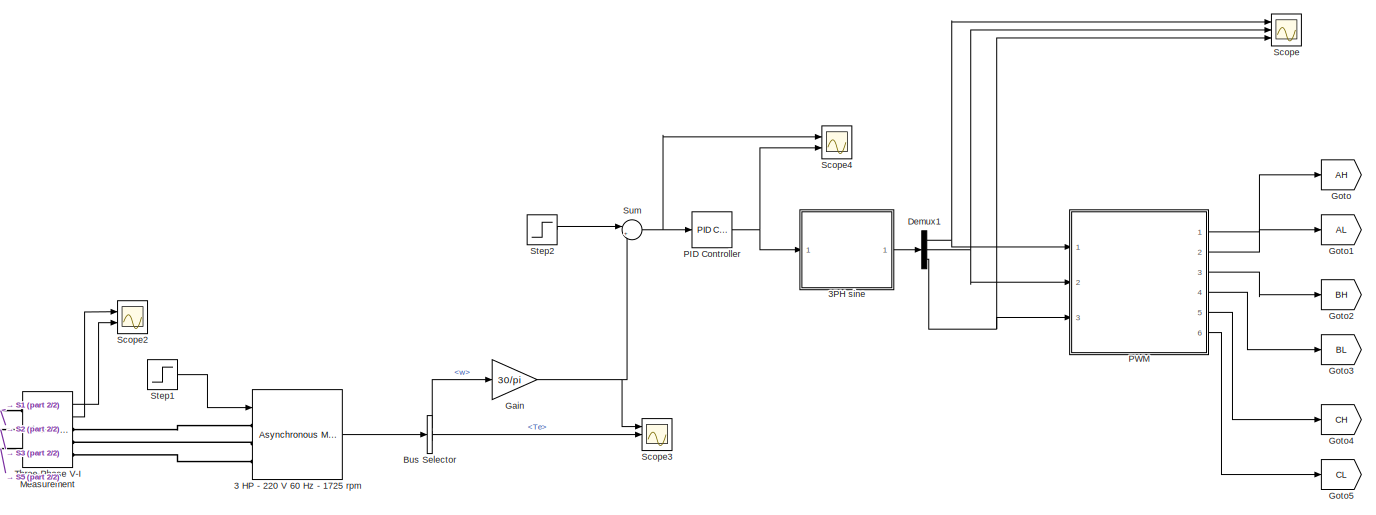
[diagram: root canvas - part 1/2, middle right region]
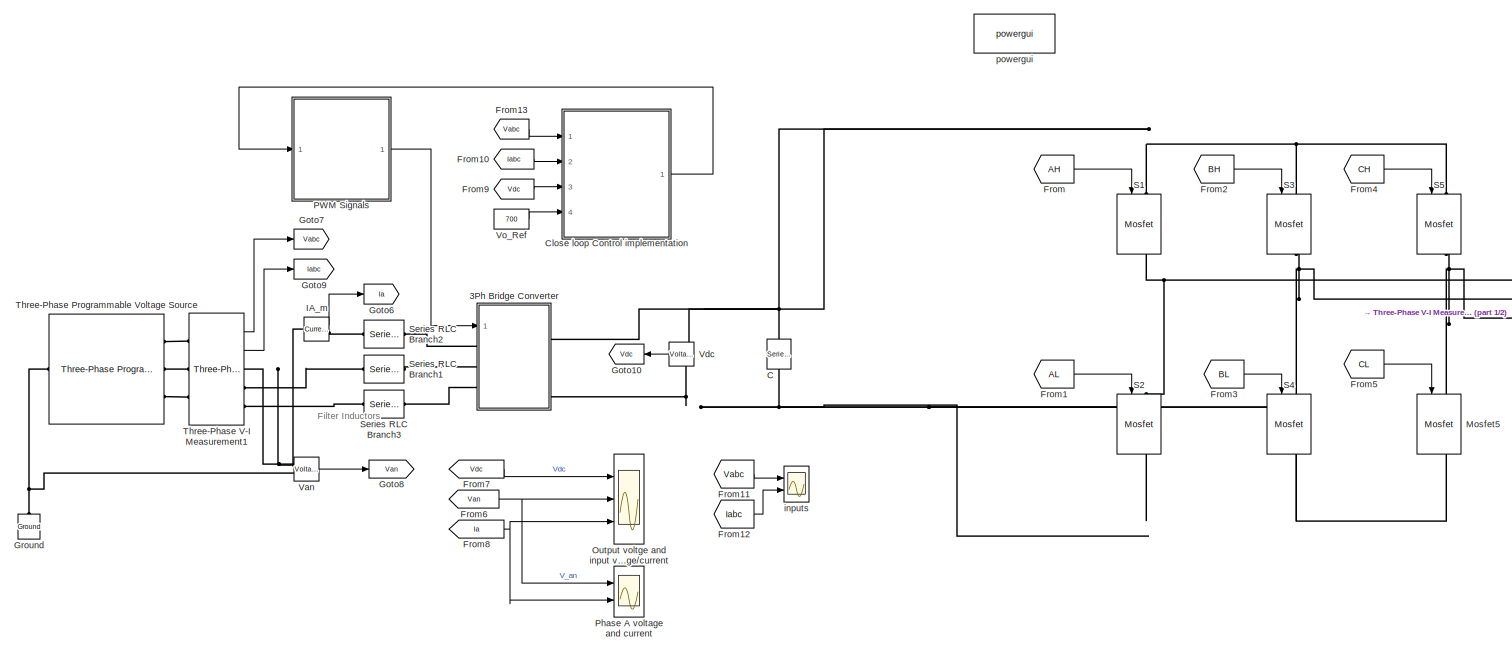
[diagram: root canvas - part 2/2, left side, full height]
MODEL slx_0cd32adfc24b
KIND model
CONFIG AbsTol = auto
CONFIG EnableMultiTasking = off
CONFIG FixedStep = auto
CONFIG MaxStep = auto
CONFIG MinStep = auto
CONFIG RelTol = 1e-3
CONFIG SampleTimeConstraint = Unconstrained
CONFIG Solver = ode23t
CONFIG SolverName = ode23t
CONFIG StartTime = 0.0
CONFIG StopTime = 10.0
BLOCK [Reference] 3 HP - 220 V 60 Hz - 1725 rpm  REF=powerlib/Machines/Asynchronous Machine
SI Units
  AttributesFormatString = \n
  Ports = [1, 1, 0, 0, 0, 3]
  SourceBlock = powerlib/Machines/Asynchronous Machine\nSI Units
  SourceProductBaseCode = PS
  SourceProductName = Simscape Power Systems
  SourceType = Asynchronous Machine
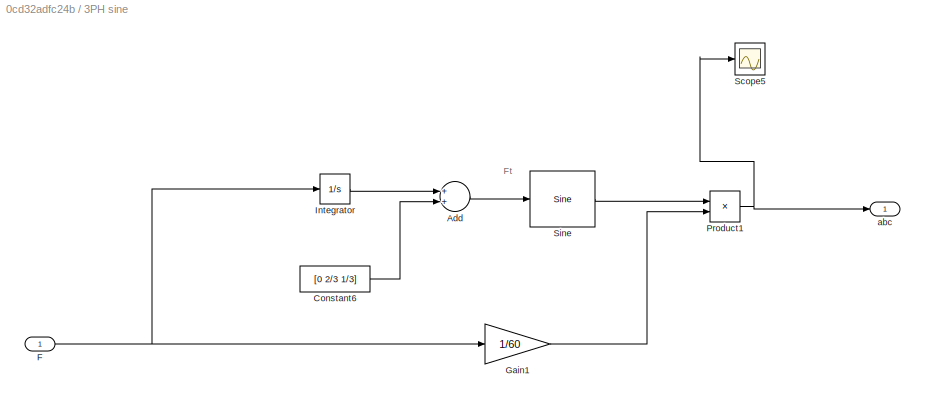
BLOCK [SubSystem] 3PH sine
  Ports = [1, 1]
  RequestExecContextInheritance = off
  Variant = off
BLOCK [Sum] 3PH sine/Add
  InputSameDT = off
  OutDataTypeStr = Inherit: Inherit via internal rule
  Ports = [2, 1]
  SaturateOnIntegerOverflow = off
BLOCK [Constant] 3PH sine/Constant6
  Value = [0 2/3 1/3]
BLOCK [Inport] 3PH sine/F
  IconDisplay = Port number
BLOCK [Gain] 3PH sine/Gain1
  Gain = 1/60
  OutDataTypeStr = Inherit: Inherit via internal rule
  ParamDataTypeStr = Inherit: Inherit via internal rule
  SaturateOnIntegerOverflow = off
BLOCK [Integrator] 3PH sine/Integrator
  Ports = [1, 1]
BLOCK [Product] 3PH sine/Product1
  InputSameDT = off
  OutDataTypeStr = Inherit: Inherit via internal rule
  Ports = [2, 1]
  RndMeth = Floor
  SaturateOnIntegerOverflow = off
BLOCK [Scope] 3PH sine/Scope5
  NumInputPorts = 1
  Ports = [1]
  ScopeSpecificationString = C++SS(StrPVP('Open','off'),StrPVP('TimeRange','auto'),StrPVP('TickLabels','OneTimeTick'),StrPVP('ShowLegends','off'),StrPVP('LimitDataPoints','off'),StrPVP('MaxDataPoints','5000'),StrPVP('SaveToWorkspace','off'),StrPVP('SaveName','ScopeData5'),StrPVP('YMin','-0.83333'),StrPVP('YMax','0.83333'),StrPVP('BlockParamSampleInput','off'),StrPVP('BlockParamSampleTime','-1'),StrPVP('ZoomMode','on'),StrPVP(...<+591ch>
BLOCK [Reference] 3PH sine/Sine  REF=simulink/Lookup
Tables/Sine
  Ports = [1, 1]
  SourceBlock = simulink/Lookup\nTables/Sine
  SourceProductBaseCode = SL
  SourceProductName = Simulink
  SourceType = Sine and Cosine
BLOCK [Outport] 3PH sine/abc
  IconDisplay = Port number
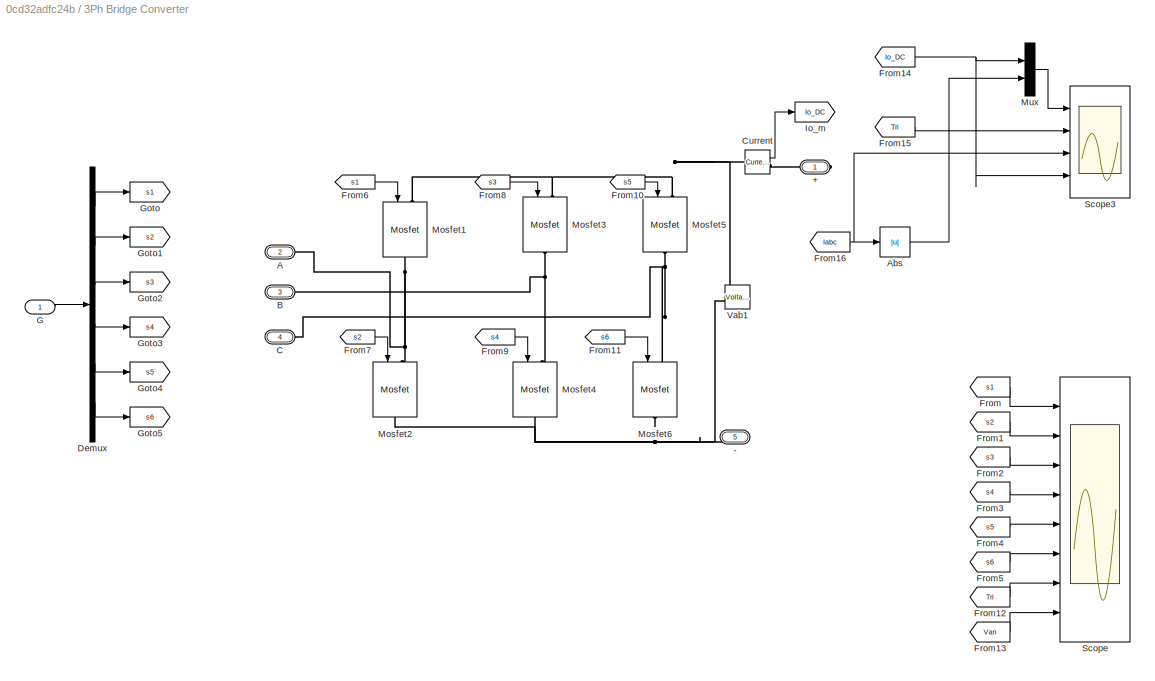
BLOCK [SubSystem] 3Ph Bridge Converter
  Ports = [1, 0, 0, 0, 0, 3, 2]
  RequestExecContextInheritance = off
  Variant = off
BLOCK [PMIOPort] 3Ph Bridge Converter/+
  Port = 1
  Side = Right
BLOCK [PMIOPort] 3Ph Bridge Converter/-
  Port = 5
  Side = Right
BLOCK [PMIOPort] 3Ph Bridge Converter/A
  Port = 2
  Side = Left
BLOCK [Abs] 3Ph Bridge Converter/Abs
  SaturateOnIntegerOverflow = off
BLOCK [PMIOPort] 3Ph Bridge Converter/B
  Port = 3
  Side = Left
BLOCK [PMIOPort] 3Ph Bridge Converter/C
  Port = 4
  Side = Left
BLOCK [Reference] 3Ph Bridge Converter/Current  REF=powerlib/Measurements/Current Measurement
  Ports = [0, 1, 0, 0, 0, 1, 1]
  SourceBlock = powerlib/Measurements/Current Measurement
  SourceProductBaseCode = PS
  SourceProductName = Simscape Power Systems
  SourceType = Current Measurement
BLOCK [Demux] 3Ph Bridge Converter/Demux
  DisplayOption = bar
  Outputs = 6
  Ports = [1, 6]
BLOCK [From] 3Ph Bridge Converter/From
  GotoTag = s1
BLOCK [From] 3Ph Bridge Converter/From1
  GotoTag = s2
BLOCK [From] 3Ph Bridge Converter/From10
  CloseFcn = tagdialog Close
  GotoTag = s5
BLOCK [From] 3Ph Bridge Converter/From11
  CloseFcn = tagdialog Close
  GotoTag = s6
BLOCK [From] 3Ph Bridge Converter/From12
  GotoTag = Tri
  TagVisibility = global
BLOCK [From] 3Ph Bridge Converter/From13
  GotoTag = Van
  TagVisibility = global
BLOCK [From] 3Ph Bridge Converter/From14
  GotoTag = Io_DC
BLOCK [From] 3Ph Bridge Converter/From15
  GotoTag = Tri
  TagVisibility = global
BLOCK [From] 3Ph Bridge Converter/From16
  GotoTag = Iabc
  TagVisibility = global
BLOCK [From] 3Ph Bridge Converter/From2
  GotoTag = s3
BLOCK [From] 3Ph Bridge Converter/From3
  GotoTag = s4
BLOCK [From] 3Ph Bridge Converter/From4
  GotoTag = s5
BLOCK [From] 3Ph Bridge Converter/From5
  GotoTag = s6
BLOCK [From] 3Ph Bridge Converter/From6
  CloseFcn = tagdialog Close
  GotoTag = s1
BLOCK [From] 3Ph Bridge Converter/From7
  CloseFcn = tagdialog Close
  GotoTag = s2
BLOCK [From] 3Ph Bridge Converter/From8
  CloseFcn = tagdialog Close
  GotoTag = s3
BLOCK [From] 3Ph Bridge Converter/From9
  CloseFcn = tagdialog Close
  GotoTag = s4
BLOCK [Inport] 3Ph Bridge Converter/G
  IconDisplay = Port number
BLOCK [Goto] 3Ph Bridge Converter/Goto
  GotoTag = s1
BLOCK [Goto] 3Ph Bridge Converter/Goto1
  GotoTag = s2
BLOCK [Goto] 3Ph Bridge Converter/Goto2
  GotoTag = s3
BLOCK [Goto] 3Ph Bridge Converter/Goto3
  GotoTag = s4
BLOCK [Goto] 3Ph Bridge Converter/Goto4
  GotoTag = s5
BLOCK [Goto] 3Ph Bridge Converter/Goto5
  GotoTag = s6
BLOCK [Goto] 3Ph Bridge Converter/Io_m
  GotoTag = Io_DC
BLOCK [Reference] 3Ph Bridge Converter/Mosfet1  REF=powerlib/Power
Electronics/Mosfet
  Ports = [1, 0, 0, 0, 0, 1, 1]
  SourceBlock = powerlib/Power\nElectronics/Mosfet
  SourceProductBaseCode = PS
  SourceProductName = Simscape Power Systems
  SourceType = Mosfet
BLOCK [Reference] 3Ph Bridge Converter/Mosfet2  REF=powerlib/Power
Electronics/Mosfet
  Ports = [1, 0, 0, 0, 0, 1, 1]
  SourceBlock = powerlib/Power\nElectronics/Mosfet
  SourceProductBaseCode = PS
  SourceProductName = Simscape Power Systems
  SourceType = Mosfet
BLOCK [Reference] 3Ph Bridge Converter/Mosfet3  REF=powerlib/Power
Electronics/Mosfet
  Ports = [1, 0, 0, 0, 0, 1, 1]
  SourceBlock = powerlib/Power\nElectronics/Mosfet
  SourceProductBaseCode = PS
  SourceProductName = Simscape Power Systems
  SourceType = Mosfet
BLOCK [Reference] 3Ph Bridge Converter/Mosfet4  REF=powerlib/Power
Electronics/Mosfet
  Ports = [1, 0, 0, 0, 0, 1, 1]
  SourceBlock = powerlib/Power\nElectronics/Mosfet
  SourceProductBaseCode = PS
  SourceProductName = Simscape Power Systems
  SourceType = Mosfet
BLOCK [Reference] 3Ph Bridge Converter/Mosfet5  REF=powerlib/Power
Electronics/Mosfet
  Ports = [1, 0, 0, 0, 0, 1, 1]
  SourceBlock = powerlib/Power\nElectronics/Mosfet
  SourceProductBaseCode = PS
  SourceProductName = Simscape Power Systems
  SourceType = Mosfet
BLOCK [Reference] 3Ph Bridge Converter/Mosfet6  REF=powerlib/Power
Electronics/Mosfet
  Ports = [1, 0, 0, 0, 0, 1, 1]
  SourceBlock = powerlib/Power\nElectronics/Mosfet
  SourceProductBaseCode = PS
  SourceProductName = Simscape Power Systems
  SourceType = Mosfet
BLOCK [Mux] 3Ph Bridge Converter/Mux
  DisplayOption = bar
  Inputs = 2
  Ports = [2, 1]
BLOCK [Scope] 3Ph Bridge Converter/Scope
  NumInputPorts = 8
  Ports = [8]
  ScopeSpecificationString = Simulink.scopes.TimeScopeBlockCfg('CurrentConfiguration', extmgr.ConfigurationSet(extmgr.Configuration('Core','General UI',true,'FigureColor',[0.156862745098039 0.156862745098039 0.156862745098039]),extmgr.Configuration('Core','Source UI',true),extmgr.Configuration('Sources','WiredSimulink',true,'DataLoggingVariableName','ScopeData6','DataLoggingSaveFormat','StructureWithTime','DataLoggingMaxPoint...<+11340ch>
BLOCK [Scope] 3Ph Bridge Converter/Scope3
  NumInputPorts = 4
  Ports = [4]
  ScopeSpecificationString = Simulink.scopes.TimeScopeBlockCfg('CurrentConfiguration', extmgr.ConfigurationSet(extmgr.Configuration('Core','General UI',true,'FigureColor',[0.156862745098039 0.156862745098039 0.156862745098039]),extmgr.Configuration('Core','Source UI',true),extmgr.Configuration('Sources','WiredSimulink',true,'DataLoggingVariableName','ScopeData10','DataLoggingSaveFormat','StructureWithTime','DataLoggingMaxPoin...<+6565ch>
BLOCK [Reference] 3Ph Bridge Converter/Vab1  REF=powerlib/Measurements/Voltage Measurement
  AttributesFormatString = \n
  Ports = [0, 1, 0, 0, 0, 2]
  SourceBlock = powerlib/Measurements/Voltage Measurement
  SourceProductBaseCode = PS
  SourceProductName = Simscape Power Systems
  SourceType = Voltage Measurement
  Tag = PoWeRsYsTeMmEaSuReMeNt
BLOCK [BusSelector] Bus Selector
  OutputAsBus = off
  OutputSignals = w,Te
  Ports = [1, 2]
BLOCK [Reference] C  REF=powerlib/Elements/Series RLC Branch
  Ports = [0, 0, 0, 0, 0, 1, 1]
  SourceBlock = powerlib/Elements/Series RLC Branch
  SourceProductBaseCode = PS
  SourceProductName = Simscape Power Systems
  SourceType = Series RLC Branch
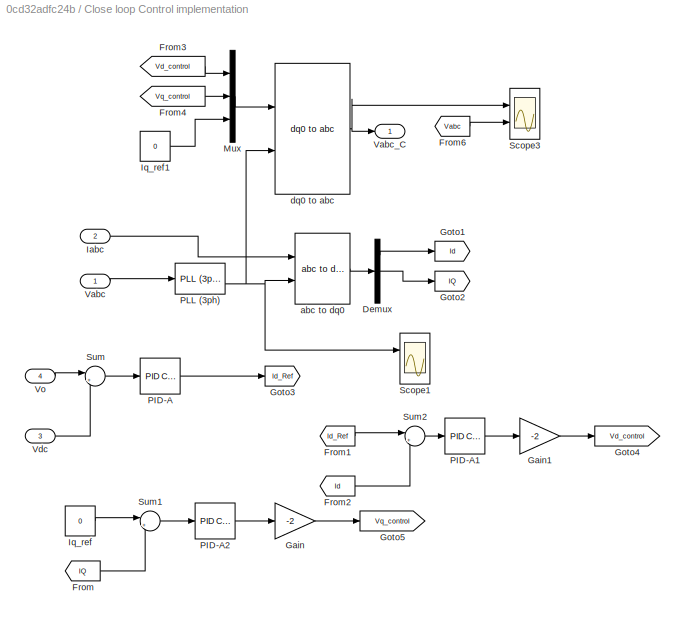
BLOCK [SubSystem] Close loop Control implementation
  Ports = [4, 1]
  RequestExecContextInheritance = off
  Variant = off
BLOCK [Demux] Close loop Control implementation/Demux
  DisplayOption = bar
  Outputs = 3
  Ports = [1, 3]
BLOCK [From] Close loop Control implementation/From
  GotoTag = IQ
  TagVisibility = global
BLOCK [From] Close loop Control implementation/From1
  GotoTag = Id_Ref
  TagVisibility = global
BLOCK [From] Close loop Control implementation/From2
  GotoTag = Id
  TagVisibility = global
BLOCK [From] Close loop Control implementation/From3
  GotoTag = Vd_control
  TagVisibility = global
BLOCK [From] Close loop Control implementation/From4
  GotoTag = Vq_control
  TagVisibility = global
BLOCK [From] Close loop Control implementation/From6
  GotoTag = Vabc
  TagVisibility = global
BLOCK [Gain] Close loop Control implementation/Gain
  Gain = -2
  OutDataTypeStr = Inherit: Inherit via internal rule
  ParamDataTypeStr = Inherit: Inherit via internal rule
  SaturateOnIntegerOverflow = off
BLOCK [Gain] Close loop Control implementation/Gain1
  Gain = -2
  OutDataTypeStr = Inherit: Inherit via internal rule
  ParamDataTypeStr = Inherit: Inherit via internal rule
  SaturateOnIntegerOverflow = off
BLOCK [Goto] Close loop Control implementation/Goto1
  GotoTag = Id
  TagVisibility = global
BLOCK [Goto] Close loop Control implementation/Goto2
  GotoTag = IQ
  TagVisibility = global
BLOCK [Goto] Close loop Control implementation/Goto3
  GotoTag = Id_Ref
  TagVisibility = global
BLOCK [Goto] Close loop Control implementation/Goto4
  GotoTag = Vd_control
  TagVisibility = global
BLOCK [Goto] Close loop Control implementation/Goto5
  GotoTag = Vq_control
  TagVisibility = global
BLOCK [Inport] Close loop Control implementation/Iabc
  IconDisplay = Port number
  Port = 2
BLOCK [Constant] Close loop Control implementation/Iq_ref
  Value = 0
BLOCK [Constant] Close loop Control implementation/Iq_ref1
  Value = 0
BLOCK [Mux] Close loop Control implementation/Mux
  DisplayOption = bar
  Inputs = 3
  Ports = [3, 1]
BLOCK [Reference] Close loop Control implementation/PID-A  REF=simulink/Continuous/PID Controller
  Ports = [1, 1]
  SourceBlock = simulink/Continuous/PID Controller
  SourceProductBaseCode = SL
  SourceProductName = Simulink
  SourceType = PID 1dof
BLOCK [Reference] Close loop Control implementation/PID-A1  REF=simulink/Continuous/PID Controller
  Ports = [1, 1]
  SourceBlock = simulink/Continuous/PID Controller
  SourceProductBaseCode = SL
  SourceProductName = Simulink
  SourceType = PID 1dof
BLOCK [Reference] Close loop Control implementation/PID-A2  REF=simulink/Continuous/PID Controller
  Ports = [1, 1]
  SourceBlock = simulink/Continuous/PID Controller
  SourceProductBaseCode = SL
  SourceProductName = Simulink
  SourceType = PID 1dof
BLOCK [Reference] Close loop Control implementation/PLL (3ph)  REF=powerlib_meascontrol/PLL/PLL
(3ph)
  Ports = [1, 2]
  SourceBlock = powerlib_meascontrol/PLL/PLL\n(3ph)
  SourceProductBaseCode = PS
  SourceProductName = Simscape Power Systems
  SourceType = PLL (3ph)
BLOCK [Scope] Close loop Control implementation/Scope1
  NumInputPorts = 2
  Ports = [2]
  ScopeSpecificationString = Simulink.scopes.TimeScopeBlockCfg('CurrentConfiguration', extmgr.ConfigurationSet(extmgr.Configuration('Core','General UI',true,'FigureColor',[0.156862745098039 0.156862745098039 0.156862745098039]),extmgr.Configuration('Core','Source UI',true),extmgr.Configuration('Sources','WiredSimulink',true,'DataLogging',true,'DataLoggingVariableName','ScopeData5','DataLoggingSaveFormat','StructureWithTime','...<+4056ch>
BLOCK [Scope] Close loop Control implementation/Scope3
  NumInputPorts = 2
  Ports = [2]
  ScopeSpecificationString = Simulink.scopes.TimeScopeBlockCfg('CurrentConfiguration', extmgr.ConfigurationSet(extmgr.Configuration('Core','General UI',true,'FigureColor',[0.156862745098039 0.156862745098039 0.156862745098039]),extmgr.Configuration('Core','Source UI',true),extmgr.Configuration('Sources','WiredSimulink',true,'DataLogging',true,'DataLoggingVariableName','ScopeData4','DataLoggingSaveFormat','StructureWithTime','...<+4060ch>
BLOCK [Sum] Close loop Control implementation/Sum
  IconShape = round
  InputSameDT = off
  Inputs = |+-
  OutDataTypeStr = Inherit: Inherit via internal rule
  Ports = [2, 1]
  SaturateOnIntegerOverflow = off
BLOCK [Sum] Close loop Control implementation/Sum1
  IconShape = round
  InputSameDT = off
  Inputs = |+-
  OutDataTypeStr = Inherit: Inherit via internal rule
  Ports = [2, 1]
  SaturateOnIntegerOverflow = off
BLOCK [Sum] Close loop Control implementation/Sum2
  IconShape = round
  InputSameDT = off
  Inputs = |+-
  OutDataTypeStr = Inherit: Inherit via internal rule
  Ports = [2, 1]
  SaturateOnIntegerOverflow = off
BLOCK [Inport] Close loop Control implementation/Vabc
  IconDisplay = Port number
BLOCK [Outport] Close loop Control implementation/Vabc_C
  IconDisplay = Port number
BLOCK [Inport] Close loop Control implementation/Vdc
  IconDisplay = Port number
  Port = 3
BLOCK [Inport] Close loop Control implementation/Vo
  IconDisplay = Port number
  Port = 4
BLOCK [Reference] Close loop Control implementation/abc to dq0  REF=powerlib_meascontrol/Transformations/abc to dq0
  Ports = [2, 1]
  SourceBlock = powerlib_meascontrol/Transformations/abc to dq0
  SourceProductBaseCode = PS
  SourceProductName = Simscape Power Systems
  SourceType = abc to dq0 Transformation
BLOCK [Reference] Close loop Control implementation/dq0 to abc  REF=powerlib_meascontrol/Transformations/dq0 to abc
  Ports = [2, 1]
  SourceBlock = powerlib_meascontrol/Transformations/dq0 to abc
  SourceProductBaseCode = PS
  SourceProductName = Simscape Power Systems
  SourceType = dq0 to abc Transformation
BLOCK [Demux] Demux1
  DisplayOption = bar
  Outputs = 3
  Ports = [1, 3]
BLOCK [From] From
  GotoTag = AH
BLOCK [From] From1
  GotoTag = AL
BLOCK [From] From10
  GotoTag = Iabc
  TagVisibility = global
BLOCK [From] From11
  GotoTag = Vabc
  TagVisibility = global
BLOCK [From] From12
  GotoTag = Iabc
  TagVisibility = global
BLOCK [From] From13
  GotoTag = Vabc
  TagVisibility = global
BLOCK [From] From2
  GotoTag = BH
BLOCK [From] From3
  GotoTag = BL
BLOCK [From] From4
  GotoTag = CH
BLOCK [From] From5
  GotoTag = CL
BLOCK [From] From6
  GotoTag = Van
  TagVisibility = global
BLOCK [From] From7
  GotoTag = Vdc
  TagVisibility = global
BLOCK [From] From8
  GotoTag = Ia
  TagVisibility = global
BLOCK [From] From9
  GotoTag = Vdc
  TagVisibility = global
BLOCK [Gain] Gain
  Gain = 30/pi
  OutDataTypeStr = Inherit: Inherit via internal rule
  ParamDataTypeStr = Inherit: Inherit via internal rule
  SaturateOnIntegerOverflow = off
BLOCK [Goto] Goto
  GotoTag = AH
BLOCK [Goto] Goto1
  GotoTag = AL
BLOCK [Goto] Goto10
  GotoTag = Vdc
  TagVisibility = global
BLOCK [Goto] Goto2
  GotoTag = BH
BLOCK [Goto] Goto3
  GotoTag = BL
BLOCK [Goto] Goto4
  GotoTag = CH
BLOCK [Goto] Goto5
  GotoTag = CL
BLOCK [Goto] Goto6
  GotoTag = Ia
  TagVisibility = global
BLOCK [Goto] Goto7
  GotoTag = Vabc
  TagVisibility = global
BLOCK [Goto] Goto8
  GotoTag = Van
  TagVisibility = global
BLOCK [Goto] Goto9
  GotoTag = Iabc
  TagVisibility = global
BLOCK [Reference] Ground  REF=powerlib/Elements/Ground
  Ports = [0, 0, 0, 0, 0, 1]
  SourceBlock = powerlib/Elements/Ground
  SourceProductBaseCode = PS
  SourceProductName = Simscape Power Systems
  SourceType = Ground
BLOCK [Reference] IA_m  REF=powerlib/Measurements/Current Measurement
  Ports = [0, 1, 0, 0, 0, 1, 1]
  SourceBlock = powerlib/Measurements/Current Measurement
  SourceProductBaseCode = PS
  SourceProductName = Simscape Power Systems
  SourceType = Current Measurement
BLOCK [Reference] Mosfet5  REF=powerlib/Power
Electronics/Mosfet
  Ports = [1, 1, 0, 0, 0, 1, 1]
  SourceBlock = powerlib/Power\nElectronics/Mosfet
  SourceProductBaseCode = PS
  SourceProductName = Simscape Power Systems
  SourceType = Mosfet
BLOCK [Scope] Output voltge and input voltage//current
  NumInputPorts = 3
  Ports = [3]
  ScopeSpecificationString = Simulink.scopes.TimeScopeBlockCfg('CurrentConfiguration', extmgr.ConfigurationSet(extmgr.Configuration('Core','General UI',true),extmgr.Configuration('Core','Source UI',true),extmgr.Configuration('Sources','WiredSimulink',true,'DataLoggingDecimation','1','DataLoggingDecimateData',true,'DataLoggingSaveFormat','StructureWithTime','DataLoggingMaxPoints','1000000','DataLoggingVariableName','ScopeData1...<+5267ch>
BLOCK [Reference] PID Controller  REF=simulink/Continuous/PID Controller
  Ports = [1, 1]
  SourceBlock = simulink/Continuous/PID Controller
  SourceProductBaseCode = SL
  SourceProductName = Simulink
  SourceType = PID 1dof
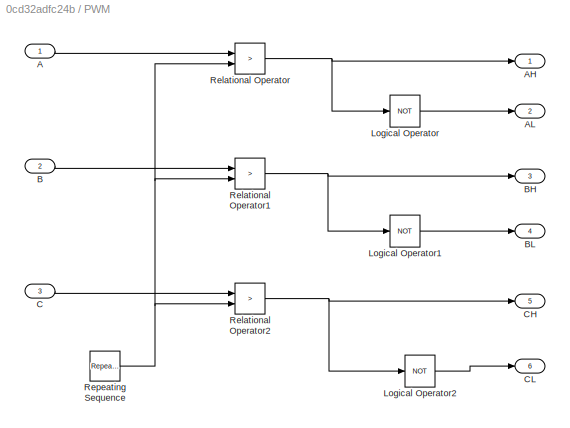
BLOCK [SubSystem] PWM
  Ports = [3, 6]
  RequestExecContextInheritance = off
  Variant = off
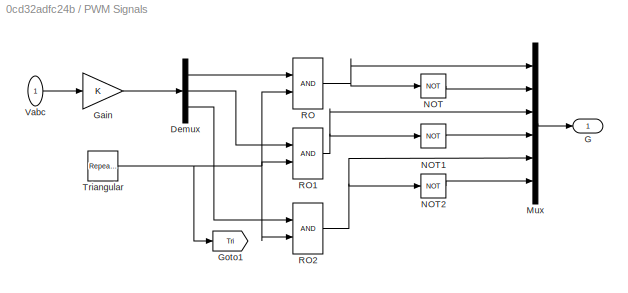
BLOCK [SubSystem] PWM Signals
  Ports = [1, 1]
  RequestExecContextInheritance = off
  Variant = off
BLOCK [Demux] PWM Signals/Demux
  DisplayOption = bar
  Outputs = 3
  Ports = [1, 3]
BLOCK [Outport] PWM Signals/G
  IconDisplay = Port number
BLOCK [Gain] PWM Signals/Gain
  OutDataTypeStr = Inherit: Inherit via internal rule
  ParamDataTypeStr = Inherit: Inherit via internal rule
  SaturateOnIntegerOverflow = off
BLOCK [Goto] PWM Signals/Goto1
  GotoTag = Tri
  TagVisibility = global
BLOCK [Mux] PWM Signals/Mux
  DisplayOption = bar
  Inputs = 6
  Ports = [6, 1]
BLOCK [Logic] PWM Signals/NOT
  AllPortsSameDT = off
  IconShape = distinctive
  Operator = NOT
  OutDataTypeStr = boolean
  Ports = [1, 1]
BLOCK [Logic] PWM Signals/NOT1
  AllPortsSameDT = off
  IconShape = distinctive
  Operator = NOT
  OutDataTypeStr = boolean
  Ports = [1, 1]
BLOCK [Logic] PWM Signals/NOT2
  AllPortsSameDT = off
  IconShape = distinctive
  Operator = NOT
  OutDataTypeStr = boolean
  Ports = [1, 1]
BLOCK [RelationalOperator] PWM Signals/RO
  InputSameDT = off
  OutDataTypeStr = boolean
  Ports = [2, 1]
BLOCK [RelationalOperator] PWM Signals/RO1
  InputSameDT = off
  OutDataTypeStr = boolean
  Ports = [2, 1]
BLOCK [RelationalOperator] PWM Signals/RO2
  InputSameDT = off
  OutDataTypeStr = boolean
  Ports = [2, 1]
BLOCK [Reference] PWM Signals/Triangular  REF=simulink/Sources/Repeating
Sequence
  Ports = [0, 1]
  SourceBlock = simulink/Sources/Repeating\nSequence
  SourceProductBaseCode = SL
  SourceProductName = Simulink
  SourceType = Repeating table
BLOCK [Inport] PWM Signals/Vabc
  IconDisplay = Port number
BLOCK [Inport] PWM/A
  IconDisplay = Port number
BLOCK [Outport] PWM/AH
  IconDisplay = Port number
BLOCK [Outport] PWM/AL
  IconDisplay = Port number
  Port = 2
BLOCK [Inport] PWM/B
  IconDisplay = Port number
  Port = 2
BLOCK [Outport] PWM/BH
  IconDisplay = Port number
  Port = 3
BLOCK [Outport] PWM/BL
  IconDisplay = Port number
  Port = 4
BLOCK [Inport] PWM/C
  IconDisplay = Port number
  Port = 3
BLOCK [Outport] PWM/CH
  IconDisplay = Port number
  Port = 5
BLOCK [Outport] PWM/CL
  IconDisplay = Port number
  Port = 6
BLOCK [Logic] PWM/Logical Operator
  AllPortsSameDT = off
  IconShape = distinctive
  Operator = NOT
  OutDataTypeStr = boolean
  Ports = [1, 1]
BLOCK [Logic] PWM/Logical Operator1
  AllPortsSameDT = off
  IconShape = distinctive
  Operator = NOT
  OutDataTypeStr = boolean
  Ports = [1, 1]
BLOCK [Logic] PWM/Logical Operator2
  AllPortsSameDT = off
  IconShape = distinctive
  Operator = NOT
  OutDataTypeStr = boolean
  Ports = [1, 1]
BLOCK [RelationalOperator] PWM/Relational Operator
  InputSameDT = off
  Operator = >
  OutDataTypeStr = boolean
  Ports = [2, 1]
BLOCK [RelationalOperator] PWM/Relational Operator1
  InputSameDT = off
  Operator = >
  OutDataTypeStr = boolean
  Ports = [2, 1]
BLOCK [RelationalOperator] PWM/Relational Operator2
  InputSameDT = off
  Operator = >
  OutDataTypeStr = boolean
  Ports = [2, 1]
BLOCK [Reference] PWM/Repeating Sequence  REF=simulink/Sources/Repeating
Sequence
  Ports = [0, 1]
  SourceBlock = simulink/Sources/Repeating\nSequence
  SourceProductBaseCode = SL
  SourceProductName = Simulink
  SourceType = Repeating table
BLOCK [Scope] Phase A voltage and current
  NumInputPorts = 2
  Ports = [2]
  ScopeSpecificationString = Simulink.scopes.TimeScopeBlockCfg('CurrentConfiguration', extmgr.ConfigurationSet(extmgr.Configuration('Core','General UI',true),extmgr.Configuration('Core','Source UI',true),extmgr.Configuration('Sources','WiredSimulink',true,'DataLoggingVariableName','ScopeData3','DataLoggingDecimation','1','DataLoggingDecimateData',true,'DataLoggingSaveFormat','StructureWithTime','DataLoggingMaxPoints','1000000...<+2110ch>
BLOCK [Reference] S1  REF=powerlib/Power
Electronics/Mosfet
  Ports = [1, 1, 0, 0, 0, 1, 1]
  SourceBlock = powerlib/Power\nElectronics/Mosfet
  SourceProductBaseCode = PS
  SourceProductName = Simscape Power Systems
  SourceType = Mosfet
BLOCK [Reference] S2  REF=powerlib/Power
Electronics/Mosfet
  Ports = [1, 1, 0, 0, 0, 1, 1]
  SourceBlock = powerlib/Power\nElectronics/Mosfet
  SourceProductBaseCode = PS
  SourceProductName = Simscape Power Systems
  SourceType = Mosfet
BLOCK [Reference] S3  REF=powerlib/Power
Electronics/Mosfet
  Ports = [1, 1, 0, 0, 0, 1, 1]
  SourceBlock = powerlib/Power\nElectronics/Mosfet
  SourceProductBaseCode = PS
  SourceProductName = Simscape Power Systems
  SourceType = Mosfet
BLOCK [Reference] S4  REF=powerlib/Power
Electronics/Mosfet
  Ports = [1, 1, 0, 0, 0, 1, 1]
  SourceBlock = powerlib/Power\nElectronics/Mosfet
  SourceProductBaseCode = PS
  SourceProductName = Simscape Power Systems
  SourceType = Mosfet
BLOCK [Reference] S5  REF=powerlib/Power
Electronics/Mosfet
  Ports = [1, 1, 0, 0, 0, 1, 1]
  SourceBlock = powerlib/Power\nElectronics/Mosfet
  SourceProductBaseCode = PS
  SourceProductName = Simscape Power Systems
  SourceType = Mosfet
BLOCK [Scope] Scope
  NumInputPorts = 3
  Ports = [3]
  ScopeSpecificationString = Simulink.scopes.TimeScopeBlockCfg('CurrentConfiguration', extmgr.ConfigurationSet(extmgr.Configuration('Core','General UI',true,'FigureColor',[0.156862745098039 0.156862745098039 0.156862745098039]),extmgr.Configuration('Core','Source UI',true),extmgr.Configuration('Sources','WiredSimulink',true,'DataLoggingVariableName','ScopeData4','DataLoggingSaveFormat','StructureWithTime','DataLoggingDecimati...<+5177ch>
BLOCK [Scope] Scope2
  NumInputPorts = 2
  Ports = [2]
  ScopeSpecificationString = Simulink.scopes.TimeScopeBlockCfg('CurrentConfiguration', extmgr.ConfigurationSet(extmgr.Configuration('Core','General UI',true,'FigureColor',[0.156862745098039 0.156862745098039 0.156862745098039]),extmgr.Configuration('Core','Source UI',true),extmgr.Configuration('Sources','WiredSimulink',true,'DataLoggingVariableName','ScopeData5','DataLoggingSaveFormat','StructureWithTime','DataLoggingDecimati...<+4711ch>
BLOCK [Scope] Scope3
  NumInputPorts = 3
  Ports = [3]
  ScopeSpecificationString = Simulink.scopes.TimeScopeBlockCfg('CurrentConfiguration', extmgr.ConfigurationSet(extmgr.Configuration('Core','General UI',true,'FigureColor',[0.156862745098039 0.156862745098039 0.156862745098039]),extmgr.Configuration('Core','Source UI',true),extmgr.Configuration('Sources','WiredSimulink',true,'DataLoggingVariableName','ScopeData6','DataLoggingSaveFormat','StructureWithTime','DataLoggingDecimati...<+6248ch>
BLOCK [Scope] Scope4
  NumInputPorts = 2
  Ports = [2]
  ScopeSpecificationString = Simulink.scopes.TimeScopeBlockCfg('CurrentConfiguration', extmgr.ConfigurationSet(extmgr.Configuration('Core','General UI',true,'FigureColor',[0.156862745098039 0.156862745098039 0.156862745098039]),extmgr.Configuration('Core','Source UI',true),extmgr.Configuration('Sources','WiredSimulink',true,'DataLoggingVariableName','ScopeData7','DataLoggingSaveFormat','StructureWithTime','DataLoggingDecimati...<+4565ch>
BLOCK [Reference] Series RLC Branch1  REF=powerlib/Elements/Series RLC Branch
  Ports = [0, 0, 0, 0, 0, 1, 1]
  SourceBlock = powerlib/Elements/Series RLC Branch
  SourceProductBaseCode = PS
  SourceProductName = Simscape Power Systems
  SourceType = Series RLC Branch
BLOCK [Reference] Series RLC Branch2  REF=powerlib/Elements/Series RLC Branch
  Ports = [0, 0, 0, 0, 0, 1, 1]
  SourceBlock = powerlib/Elements/Series RLC Branch
  SourceProductBaseCode = PS
  SourceProductName = Simscape Power Systems
  SourceType = Series RLC Branch
BLOCK [Reference] Series RLC Branch3  REF=powerlib/Elements/Series RLC Branch
  Ports = [0, 0, 0, 0, 0, 1, 1]
  SourceBlock = powerlib/Elements/Series RLC Branch
  SourceProductBaseCode = PS
  SourceProductName = Simscape Power Systems
  SourceType = Series RLC Branch
BLOCK [Step] Step1
  After = 5
  Before = 5
  SampleTime = 0
  Time = 5
BLOCK [Step] Step2
  After = 800
  Before = 1500
  SampleTime = 0
  Time = 3
BLOCK [Sum] Sum
  IconShape = round
  InputSameDT = off
  Inputs = |+-
  OutDataTypeStr = Inherit: Inherit via internal rule
  Ports = [2, 1]
  SaturateOnIntegerOverflow = off
BLOCK [Reference] Three-Phase Programmable Voltage Source  REF=powerlib/Electrical
Sources/Three-Phase
Programmable
Voltage Source
  Ports = [0, 0, 0, 0, 0, 1, 3]
  SourceBlock = powerlib/Electrical\nSources/Three-Phase\nProgrammable\nVoltage Source
  SourceProductBaseCode = PS
  SourceProductName = Simscape Power Systems
  SourceType = Three-Phase Programmable Voltage Source
BLOCK [Reference] Three-Phase V-I Measurement  REF=powerlib/Measurements/Three-Phase
V-I Measurement
  Ports = [0, 2, 0, 0, 0, 3, 3]
  SourceBlock = powerlib/Measurements/Three-Phase\nV-I Measurement
  SourceProductBaseCode = PS
  SourceProductName = Simscape Power Systems
  SourceType = Three-Phase VI Measurement
BLOCK [Reference] Three-Phase V-I Measurement1  REF=powerlib/Measurements/Three-Phase
V-I Measurement
  Ports = [0, 2, 0, 0, 0, 3, 3]
  SourceBlock = powerlib/Measurements/Three-Phase\nV-I Measurement
  SourceProductBaseCode = PS
  SourceProductName = Simscape Power Systems
  SourceType = Three-Phase VI Measurement
BLOCK [Reference] Van  REF=powerlib/Measurements/Voltage Measurement
  AttributesFormatString = \n
  Ports = [0, 1, 0, 0, 0, 2]
  SourceBlock = powerlib/Measurements/Voltage Measurement
  SourceProductBaseCode = PS
  SourceProductName = Simscape Power Systems
  SourceType = Voltage Measurement
  Tag = PoWeRsYsTeMmEaSuReMeNt
BLOCK [Reference] Vdc   REF=powerlib/Measurements/Voltage Measurement
  AttributesFormatString = \n
  Ports = [0, 1, 0, 0, 0, 2]
  SourceBlock = powerlib/Measurements/Voltage Measurement
  SourceProductBaseCode = PS
  SourceProductName = Simscape Power Systems
  SourceType = Voltage Measurement
  Tag = PoWeRsYsTeMmEaSuReMeNt
BLOCK [Constant] Vo_Ref
  Value = 700
BLOCK [Scope] inputs
  NumInputPorts = 2
  Ports = [2]
  ScopeSpecificationString = Simulink.scopes.TimeScopeBlockCfg('CurrentConfiguration', extmgr.ConfigurationSet(extmgr.Configuration('Core','General UI',true),extmgr.Configuration('Core','Source UI',true),extmgr.Configuration('Sources','WiredSimulink',true,'DataLoggingVariableName','ScopeData2','DataLoggingDecimation','1','DataLoggingDecimateData',true,'DataLoggingSaveFormat','StructureWithTime','DataLoggingMaxPoints','1000000...<+4178ch>
BLOCK [Reference] powergui  REF=powerlib/powergui
  Ports = []
  Priority = 1
  SourceBlock = powerlib/powergui
  SourceProductBaseCode = PS
  SourceProductName = Simscape Power Systems
  SourceType = PSB option menu block
ANNOTATION (root): Filter Inductors
ANNOTATION 3PH sine: Ft
LINE 3 HP - 220 V 60 Hz - 1725 rpm:1 -> Bus Selector:1
LINE 3PH sine/Add:1 -> 3PH sine/Sine:1
LINE 3PH sine/Constant6:1 -> 3PH sine/Add:2
NET 3PH sine/F:1 -> 3PH sine/Gain1:1, 3PH sine/Integrator:1
LINE 3PH sine/Gain1:1 -> 3PH sine/Product1:2
LINE 3PH sine/Integrator:1 -> 3PH sine/Add:1
NET 3PH sine/Product1:1 -> 3PH sine/Scope5:1, 3PH sine/abc:1
LINE 3PH sine/Sine:1 -> 3PH sine/Product1:1
LINE 3PH sine:1 -> Demux1:1
LINE 3Ph Bridge Converter/Abs:1 -> 3Ph Bridge Converter/Mux:2
LINE 3Ph Bridge Converter/Current:1 -> 3Ph Bridge Converter/Io_m:1
LINE 3Ph Bridge Converter/Demux:1 -> 3Ph Bridge Converter/Goto:1
LINE 3Ph Bridge Converter/Demux:2 -> 3Ph Bridge Converter/Goto1:1
LINE 3Ph Bridge Converter/Demux:3 -> 3Ph Bridge Converter/Goto2:1
LINE 3Ph Bridge Converter/Demux:4 -> 3Ph Bridge Converter/Goto3:1
LINE 3Ph Bridge Converter/Demux:5 -> 3Ph Bridge Converter/Goto4:1
LINE 3Ph Bridge Converter/Demux:6 -> 3Ph Bridge Converter/Goto5:1
LINE 3Ph Bridge Converter/From10:1 -> 3Ph Bridge Converter/Mosfet5:1
LINE 3Ph Bridge Converter/From11:1 -> 3Ph Bridge Converter/Mosfet6:1
LINE 3Ph Bridge Converter/From12:1 -> 3Ph Bridge Converter/Scope:7
LINE 3Ph Bridge Converter/From13:1 -> 3Ph Bridge Converter/Scope:8
NET 3Ph Bridge Converter/From14:1 -> 3Ph Bridge Converter/Mux:1, 3Ph Bridge Converter/Scope3:4
LINE 3Ph Bridge Converter/From15:1 -> 3Ph Bridge Converter/Scope3:2
NET 3Ph Bridge Converter/From16:1 -> 3Ph Bridge Converter/Abs:1, 3Ph Bridge Converter/Scope3:3
LINE 3Ph Bridge Converter/From1:1 -> 3Ph Bridge Converter/Scope:2
LINE 3Ph Bridge Converter/From2:1 -> 3Ph Bridge Converter/Scope:3
LINE 3Ph Bridge Converter/From3:1 -> 3Ph Bridge Converter/Scope:4
LINE 3Ph Bridge Converter/From4:1 -> 3Ph Bridge Converter/Scope:5
LINE 3Ph Bridge Converter/From5:1 -> 3Ph Bridge Converter/Scope:6
LINE 3Ph Bridge Converter/From6:1 -> 3Ph Bridge Converter/Mosfet1:1
LINE 3Ph Bridge Converter/From7:1 -> 3Ph Bridge Converter/Mosfet2:1
LINE 3Ph Bridge Converter/From8:1 -> 3Ph Bridge Converter/Mosfet3:1
LINE 3Ph Bridge Converter/From9:1 -> 3Ph Bridge Converter/Mosfet4:1
LINE 3Ph Bridge Converter/From:1 -> 3Ph Bridge Converter/Scope:1
LINE 3Ph Bridge Converter/G:1 -> 3Ph Bridge Converter/Demux:1
LINE 3Ph Bridge Converter/Mux:1 -> 3Ph Bridge Converter/Scope3:1
LINE Bus Selector:1 -> Gain:1
LINE Bus Selector:2 -> Scope3:2
LINE Close loop Control implementation/Demux:1 -> Close loop Control implementation/Goto1:1
LINE Close loop Control implementation/Demux:2 -> Close loop Control implementation/Goto2:1
LINE Close loop Control implementation/From1:1 -> Close loop Control implementation/Sum2:1
LINE Close loop Control implementation/From2:1 -> Close loop Control implementation/Sum2:2
LINE Close loop Control implementation/From3:1 -> Close loop Control implementation/Mux:1
LINE Close loop Control implementation/From4:1 -> Close loop Control implementation/Mux:2
LINE Close loop Control implementation/From6:1 -> Close loop Control implementation/Scope3:2
LINE Close loop Control implementation/From:1 -> Close loop Control implementation/Sum1:2
LINE Close loop Control implementation/Gain1:1 -> Close loop Control implementation/Goto4:1
LINE Close loop Control implementation/Gain:1 -> Close loop Control implementation/Goto5:1
LINE Close loop Control implementation/Iabc:1 -> Close loop Control implementation/abc to dq0:1
LINE Close loop Control implementation/Iq_ref1:1 -> Close loop Control implementation/Mux:3
LINE Close loop Control implementation/Iq_ref:1 -> Close loop Control implementation/Sum1:1
LINE Close loop Control implementation/Mux:1 -> Close loop Control implementation/dq0 to abc:1
LINE Close loop Control implementation/PID-A1:1 -> Close loop Control implementation/Gain1:1
LINE Close loop Control implementation/PID-A2:1 -> Close loop Control implementation/Gain:1
LINE Close loop Control implementation/PID-A:1 -> Close loop Control implementation/Goto3:1
NET Close loop Control implementation/PLL (3ph):2 -> Close loop Control implementation/Scope1:1, Close loop Control implementation/abc to dq0:2, Close loop Control implementation/dq0 to abc:2
LINE Close loop Control implementation/Sum1:1 -> Close loop Control implementation/PID-A2:1
LINE Close loop Control implementation/Sum2:1 -> Close loop Control implementation/PID-A1:1
LINE Close loop Control implementation/Sum:1 -> Close loop Control implementation/PID-A:1
LINE Close loop Control implementation/Vabc:1 -> Close loop Control implementation/PLL (3ph):1
LINE Close loop Control implementation/Vdc:1 -> Close loop Control implementation/Sum:2
LINE Close loop Control implementation/Vo:1 -> Close loop Control implementation/Sum:1
LINE Close loop Control implementation/abc to dq0:1 -> Close loop Control implementation/Demux:1
NET Close loop Control implementation/dq0 to abc:1 -> Close loop Control implementation/Scope3:1, Close loop Control implementation/Vabc_C:1
LINE Close loop Control implementation:1 -> PWM Signals:1
NET Demux1:1 -> PWM:1, Scope:1
NET Demux1:2 -> PWM:2, Scope:2
NET Demux1:3 -> PWM:3, Scope:3
LINE From10:1 -> Close loop Control implementation:2
LINE From11:1 -> inputs:1
LINE From12:1 -> inputs:2
LINE From13:1 -> Close loop Control implementation:1
LINE From1:1 -> S2:1
LINE From2:1 -> S3:1
LINE From3:1 -> S4:1
LINE From4:1 -> S5:1
LINE From5:1 -> Mosfet5:1
NET From6:1 -> Output voltge and input voltage//current:2, Phase A voltage and current:1
LINE From7:1 -> Output voltge and input voltage//current:1
NET From8:1 -> Output voltge and input voltage//current:3, Phase A voltage and current:2
LINE From9:1 -> Close loop Control implementation:3
LINE From:1 -> S1:1
NET Gain:1 -> Scope3:1, Sum:2
LINE IA_m:1 -> Goto6:1
NET PID Controller:1 -> 3PH sine:1, Scope4:2
LINE PWM Signals/Demux:1 -> PWM Signals/RO:1
LINE PWM Signals/Demux:2 -> PWM Signals/RO1:1
LINE PWM Signals/Demux:3 -> PWM Signals/RO2:1
LINE PWM Signals/Gain:1 -> PWM Signals/Demux:1
LINE PWM Signals/Mux:1 -> PWM Signals/G:1
LINE PWM Signals/NOT1:1 -> PWM Signals/Mux:4
LINE PWM Signals/NOT2:1 -> PWM Signals/Mux:6
LINE PWM Signals/NOT:1 -> PWM Signals/Mux:2
NET PWM Signals/RO1:1 -> PWM Signals/Mux:3, PWM Signals/NOT1:1
NET PWM Signals/RO2:1 -> PWM Signals/Mux:5, PWM Signals/NOT2:1
NET PWM Signals/RO:1 -> PWM Signals/Mux:1, PWM Signals/NOT:1
NET PWM Signals/Triangular:1 -> PWM Signals/Goto1:1, PWM Signals/RO1:2, PWM Signals/RO2:2, PWM Signals/RO:2
LINE PWM Signals/Vabc:1 -> PWM Signals/Gain:1
LINE PWM Signals:1 -> 3Ph Bridge Converter:1
LINE PWM/A:1 -> PWM/Relational Operator:1
LINE PWM/B:1 -> PWM/Relational Operator1:1
LINE PWM/C:1 -> PWM/Relational Operator2:1
LINE PWM/Logical Operator1:1 -> PWM/BL:1
LINE PWM/Logical Operator2:1 -> PWM/CL:1
LINE PWM/Logical Operator:1 -> PWM/AL:1
NET PWM/Relational Operator1:1 -> PWM/BH:1, PWM/Logical Operator1:1
NET PWM/Relational Operator2:1 -> PWM/CH:1, PWM/Logical Operator2:1
NET PWM/Relational Operator:1 -> PWM/AH:1, PWM/Logical Operator:1
NET PWM/Repeating Sequence:1 -> PWM/Relational Operator1:2, PWM/Relational Operator2:2, PWM/Relational Operator:2
LINE PWM:1 -> Goto:1
LINE PWM:2 -> Goto1:1
LINE PWM:3 -> Goto2:1
LINE PWM:4 -> Goto3:1
LINE PWM:5 -> Goto4:1
LINE PWM:6 -> Goto5:1
LINE Step1:1 -> 3 HP - 220 V 60 Hz - 1725 rpm:1
LINE Step2:1 -> Sum:1
NET Sum:1 -> PID Controller:1, Scope4:1
LINE Three-Phase V-I Measurement1:1 -> Goto7:1
LINE Three-Phase V-I Measurement1:2 -> Goto9:1
LINE Three-Phase V-I Measurement:1 -> Scope2:2
LINE Three-Phase V-I Measurement:2 -> Scope2:1
LINE Van:1 -> Goto8:1
LINE Vdc :1 -> Goto10:1
LINE Vo_Ref:1 -> Close loop Control implementation:4
PLINE 3 HP - 220 V 60 Hz - 1725 rpm:LConn1 -- Three-Phase V-I Measurement:RConn1
PLINE 3 HP - 220 V 60 Hz - 1725 rpm:LConn2 -- Three-Phase V-I Measurement:RConn2
PLINE 3 HP - 220 V 60 Hz - 1725 rpm:LConn3 -- Three-Phase V-I Measurement:RConn3
PLINE 3Ph Bridge Converter/+:RConn1 -- 3Ph Bridge Converter/Current:RConn1
PNET net1: 3Ph Bridge Converter/-:RConn1 -- 3Ph Bridge Converter/Mosfet2:RConn1 -- 3Ph Bridge Converter/Mosfet4:RConn1 -- 3Ph Bridge Converter/Mosfet6:RConn1 -- 3Ph Bridge Converter/Vab1:LConn2
PNET net2: 3Ph Bridge Converter/A:RConn1 -- 3Ph Bridge Converter/Mosfet1:RConn1 -- 3Ph Bridge Converter/Mosfet2:LConn1
PNET net3: 3Ph Bridge Converter/B:RConn1 -- 3Ph Bridge Converter/Mosfet3:RConn1 -- 3Ph Bridge Converter/Mosfet4:LConn1
PNET net4: 3Ph Bridge Converter/C:RConn1 -- 3Ph Bridge Converter/Mosfet5:RConn1 -- 3Ph Bridge Converter/Mosfet6:LConn1
PNET net5: 3Ph Bridge Converter/Current:LConn1 -- 3Ph Bridge Converter/Mosfet1:LConn1 -- 3Ph Bridge Converter/Mosfet3:LConn1 -- 3Ph Bridge Converter/Mosfet5:LConn1 -- 3Ph Bridge Converter/Vab1:LConn1
PLINE 3Ph Bridge Converter:LConn1 -- Series RLC Branch2:LConn1
PLINE 3Ph Bridge Converter:LConn2 -- Series RLC Branch1:LConn1
PLINE 3Ph Bridge Converter:LConn3 -- Series RLC Branch3:LConn1
PNET net6: 3Ph Bridge Converter:RConn1 -- C:LConn1 -- S1:LConn1 -- S3:LConn1 -- S5:LConn1 -- Vdc :LConn1
PNET net7: 3Ph Bridge Converter:RConn2 -- C:RConn1 -- Mosfet5:RConn1 -- S2:RConn1 -- S4:RConn1 -- Vdc :LConn2
PNET net8: Ground:LConn1 -- Three-Phase Programmable Voltage Source:LConn1 -- Van:LConn2
PNET net9: IA_m:LConn1 -- Three-Phase V-I Measurement1:RConn1 -- Van:LConn1
PLINE IA_m:RConn1 -- Series RLC Branch2:RConn1
PNET net10: Mosfet5:LConn1 -- S5:RConn1 -- Three-Phase V-I Measurement:LConn3
PNET net11: S1:RConn1 -- S2:LConn1 -- Three-Phase V-I Measurement:LConn1
PNET net12: S3:RConn1 -- S4:LConn1 -- Three-Phase V-I Measurement:LConn2
PLINE Series RLC Branch1:RConn1 -- Three-Phase V-I Measurement1:RConn2
PLINE Series RLC Branch3:RConn1 -- Three-Phase V-I Measurement1:RConn3
PLINE Three-Phase Programmable Voltage Source:RConn1 -- Three-Phase V-I Measurement1:LConn1
PLINE Three-Phase Programmable Voltage Source:RConn2 -- Three-Phase V-I Measurement1:LConn2
PLINE Three-Phase Programmable Voltage Source:RConn3 -- Three-Phase V-I Measurement1:LConn3
note: NET lines group one-source signal fan-out (src -> all destinations, sorted); 1:1 wires keep LINE; PNET lines group multi-terminal physical nets as a canonical sorted terminal list (undirected conserving connections); 2-terminal nets keep the pairwise PLINE form
